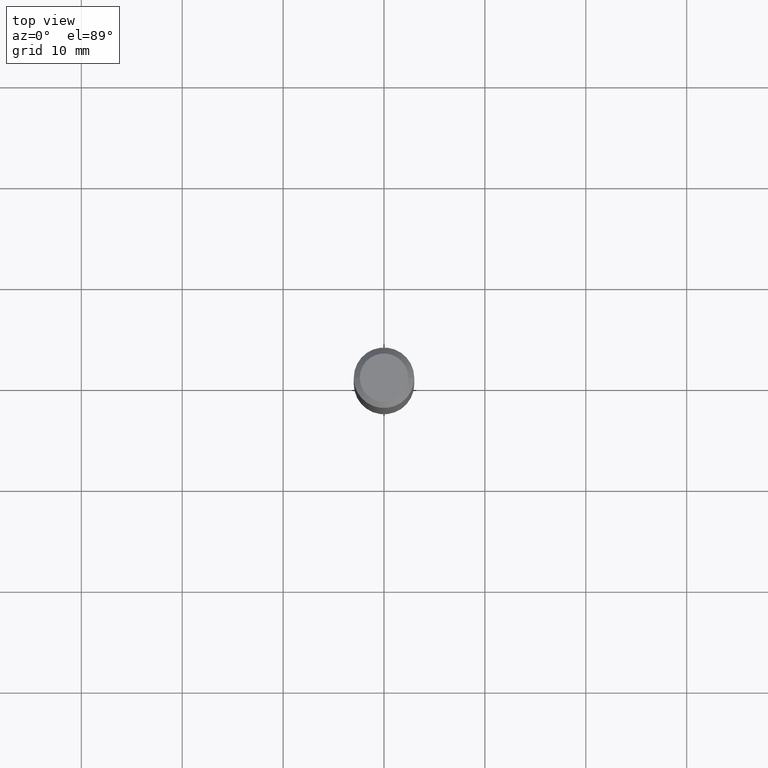
[diagram: clean part render]
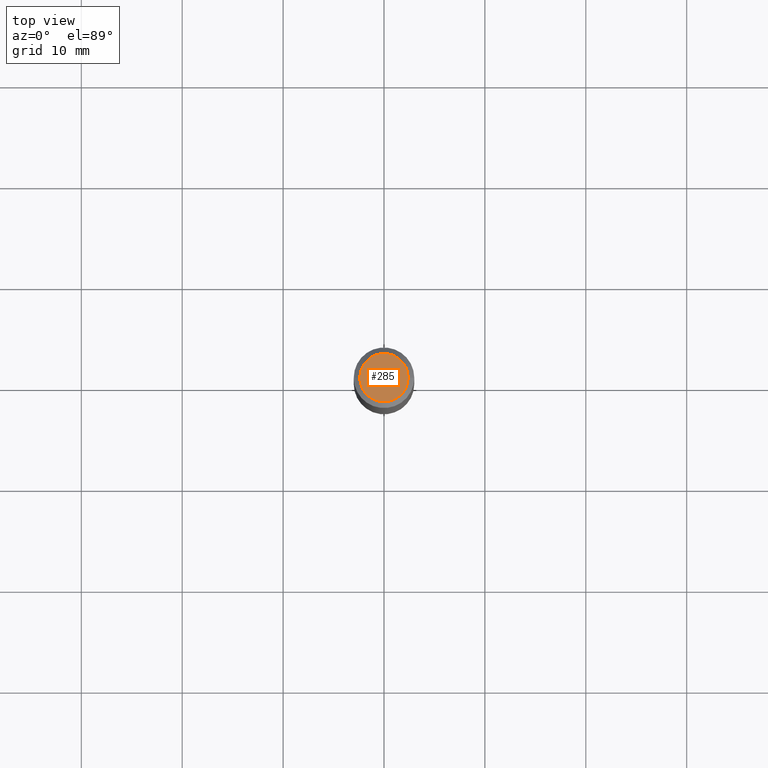
[diagram: same view with one face highlighted and labeled with its STEP entity id]
A machine part, top view. The second image highlights one B-rep face of the part: STEP entity #285.
In plain terms, the highlighted planar face has unit normal (0, -0, -1).
Its self-contained STEP definition (entity closure, byte-faithful):
#3 = DIRECTION ( 'NONE',  ( -2.445468806185136597E-29, 3.491481338843145583E-15, 1.000000000000000000 ) ) ;
#8 = CIRCLE ( 'NONE', #291, 0.09447999999999998066 ) ;
#55 = EDGE_CURVE ( 'NONE', #399, #367, #330, .T. ) ;
#61 = AXIS2_PLACEMENT_3D ( 'NONE', #267, #3, #77 ) ;
#66 = PLANE ( 'NONE',  #466 ) ;
#77 = DIRECTION ( 'NONE',  ( 1.000000000000000000, -6.982962677686267499E-15, 4.875432709231658792E-29 ) ) ;
#92 = CARTESIAN_POINT ( 'NONE',  ( -0.09447999999999998066, 7.009847083995354710E-16, -1.928573779297727792E-17 ) ) ;
#108 = EDGE_LOOP ( 'NONE', ( #171, #465 ) ) ;
#125 = CARTESIAN_POINT ( 'NONE',  ( 2.358133508849003952E-46, -3.366789680499277518E-32, -9.642868896486260050E-18 ) ) ;
#138 = DIRECTION ( 'NONE',  ( 2.438088387897960049E-29, -3.491481338843145188E-15, -1.000000000000000000 ) ) ;
#152 = EDGE_CURVE ( 'NONE', #367, #399, #8, .T. ) ;
#171 = ORIENTED_EDGE ( 'NONE', *, *, #152, .T. ) ;
#201 = FACE_OUTER_BOUND ( 'NONE', #108, .T. ) ;
#240 = CARTESIAN_POINT ( 'NONE',  ( 4.716267017698007905E-46, -6.733579360998555036E-32, -1.928573779297252010E-17 ) ) ;
#267 = CARTESIAN_POINT ( 'NONE',  ( 4.716267017698007905E-46, -6.733579360998555036E-32, -1.928573779297252010E-17 ) ) ;
#285 = ADVANCED_FACE ( 'NONE', ( #201 ), #66, .F. ) ;
#291 = AXIS2_PLACEMENT_3D ( 'NONE', #240, #353, #395 ) ;
#330 = CIRCLE ( 'NONE', #61, 0.09447999999999998066 ) ;
#353 = DIRECTION ( 'NONE',  ( -2.445468806185136597E-29, 3.491481338843145583E-15, 1.000000000000000000 ) ) ;
#367 = VERTEX_POINT ( 'NONE', #92 ) ;
#395 = DIRECTION ( 'NONE',  ( 1.000000000000000000, -6.982962677686267499E-15, 4.875432709231658792E-29 ) ) ;
#399 = VERTEX_POINT ( 'NONE', #451 ) ;
#440 = DIRECTION ( 'NONE',  ( -1.000000000000000000, 6.982962677686265922E-15, -4.876176775795935793E-29 ) ) ;
#451 = CARTESIAN_POINT ( 'NONE',  ( 0.09447999999999998066, -7.704367267948738690E-16, -1.928573779296752193E-17 ) ) ;
#465 = ORIENTED_EDGE ( 'NONE', *, *, #55, .T. ) ;
#466 = AXIS2_PLACEMENT_3D ( 'NONE', #125, #138, #440 ) ;